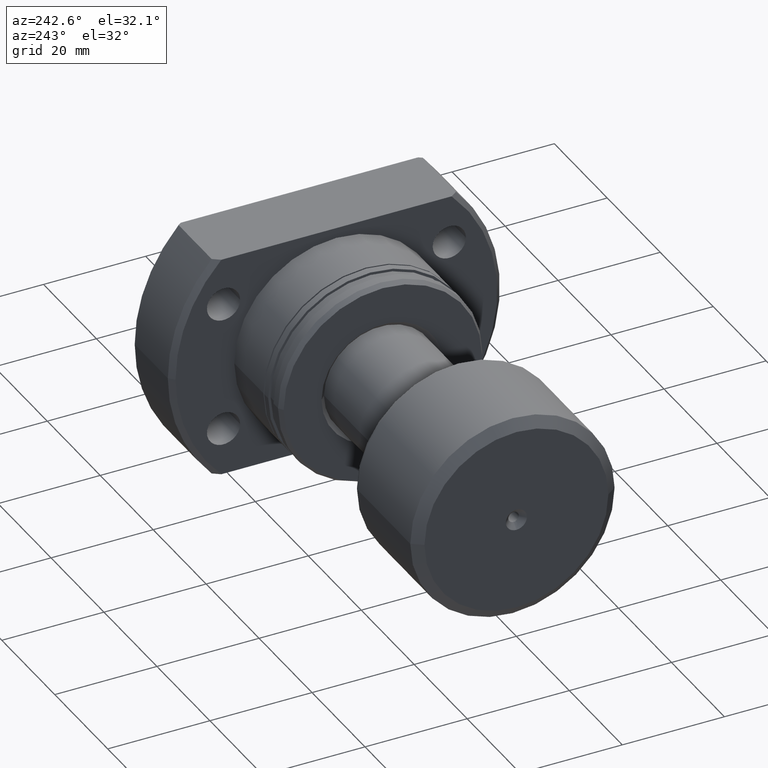
[diagram: clean part render]
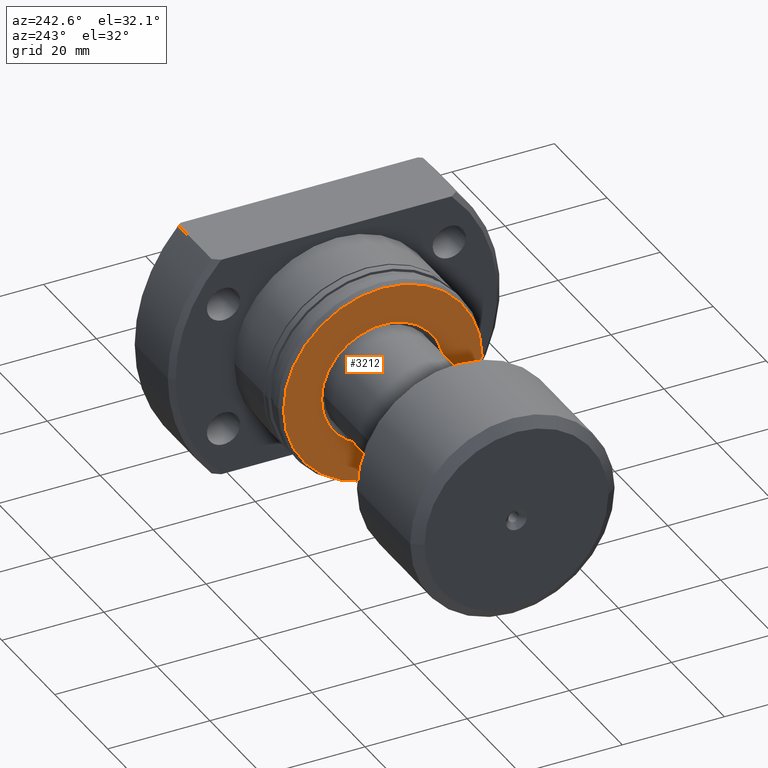
[diagram: same view with one face highlighted and labeled with its STEP entity id]
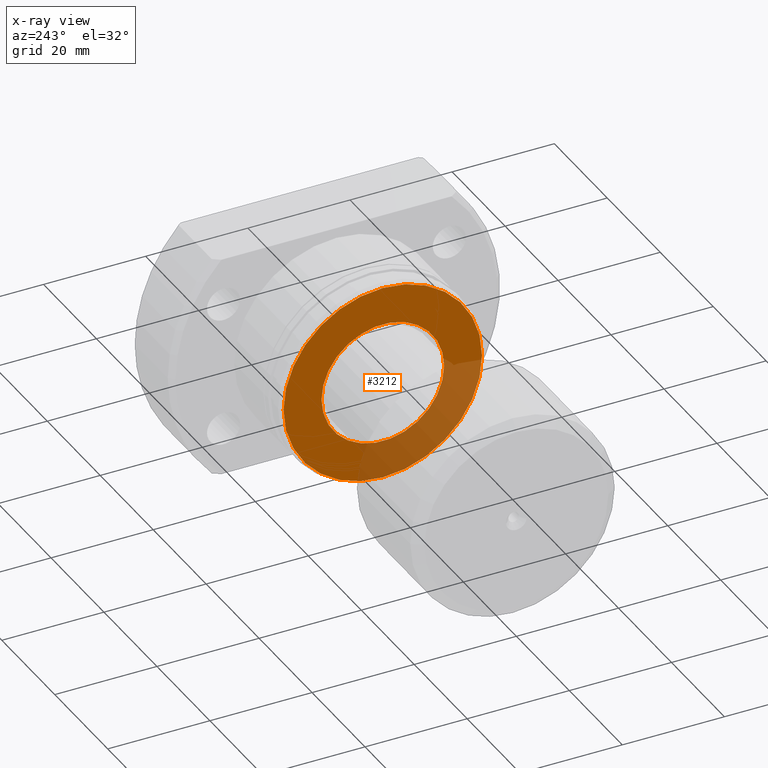
[diagram: x-ray of the same camera — body ghosted, the highlighted face saturated]
A machine part, auxiliary view. The second image highlights one B-rep face of the part: STEP entity #3212.
The next image is the same camera in x-ray: the body ghosted, the highlighted face saturated — about 29% of this face is hidden behind the body in this view.
In plain terms, the highlighted planar face has unit normal (1, 0, 0).
Its self-contained STEP definition (entity closure, byte-faithful):
#4 = DIRECTION ( 'NONE',  ( -2.721437331438560697E-17, 1.000000000000000000, 0.000000000000000000 ) ) ;
#76 = AXIS2_PLACEMENT_3D ( 'NONE', #1620, #3038, #1033 ) ;
#204 = CIRCLE ( 'NONE', #76, 19.42264973081037027 ) ;
#443 = CIRCLE ( 'NONE', #911, 12.00000000000037481 ) ;
#448 = AXIS2_PLACEMENT_3D ( 'NONE', #1320, #1280, #1907 ) ;
#522 = VERTEX_POINT ( 'NONE', #2253 ) ;
#537 = VERTEX_POINT ( 'NONE', #834 ) ;
#568 = CIRCLE ( 'NONE', #2233, 19.42264973081037027 ) ;
#577 = DIRECTION ( 'NONE',  ( 1.000000000000000000, 2.721437331438560389E-17, -0.000000000000000000 ) ) ;
#623 = AXIS2_PLACEMENT_3D ( 'NONE', #2419, #1309, #1602 ) ;
#661 = ORIENTED_EDGE ( 'NONE', *, *, #1599, .F. ) ;
#782 = PLANE ( 'NONE',  #623 ) ;
#834 = CARTESIAN_POINT ( 'NONE',  ( -5.285752405288245154E-16, 19.42264973081037027, 0.000000000000000000 ) ) ;
#872 = ORIENTED_EDGE ( 'NONE', *, *, #2542, .T. ) ;
#901 = VERTEX_POINT ( 'NONE', #3258 ) ;
#911 = AXIS2_PLACEMENT_3D ( 'NONE', #1552, #2111, #2747 ) ;
#964 = VERTEX_POINT ( 'NONE', #3024 ) ;
#1028 = FACE_OUTER_BOUND ( 'NONE', #2617, .T. ) ;
#1033 = DIRECTION ( 'NONE',  ( -2.721437331438560697E-17, 1.000000000000000000, 0.000000000000000000 ) ) ;
#1280 = DIRECTION ( 'NONE',  ( 1.000000000000000000, 2.721437331438560389E-17, -0.000000000000000000 ) ) ;
#1309 = DIRECTION ( 'NONE',  ( 1.000000000000000000, 2.721437331438560389E-17, -0.000000000000000000 ) ) ;
#1320 = CARTESIAN_POINT ( 'NONE',  ( 9.250066709254890749E-16, -2.566457008072278120E-29, 0.000000000000000000 ) ) ;
#1552 = CARTESIAN_POINT ( 'NONE',  ( 9.250066709254890749E-16, -2.566457008072278120E-29, 0.000000000000000000 ) ) ;
#1573 = EDGE_LOOP ( 'NONE', ( #2930, #872 ) ) ;
#1599 = EDGE_CURVE ( 'NONE', #522, #537, #204, .T. ) ;
#1602 = DIRECTION ( 'NONE',  ( -2.721437331438560389E-17, 1.000000000000000000, 0.000000000000000000 ) ) ;
#1620 = CARTESIAN_POINT ( 'NONE',  ( 0.000000000000000000, 0.000000000000000000, 0.000000000000000000 ) ) ;
#1907 = DIRECTION ( 'NONE',  ( -2.721437331438560389E-17, 1.000000000000000000, 0.000000000000000000 ) ) ;
#2111 = DIRECTION ( 'NONE',  ( 1.000000000000000000, 2.721437331438560389E-17, -0.000000000000000000 ) ) ;
#2233 = AXIS2_PLACEMENT_3D ( 'NONE', #2279, #577, #4 ) ;
#2253 = CARTESIAN_POINT ( 'NONE',  ( 5.285752405288245154E-16, -19.42264973081037027, 2.413941090337209377E-15 ) ) ;
#2279 = CARTESIAN_POINT ( 'NONE',  ( 0.000000000000000000, 0.000000000000000000, 0.000000000000000000 ) ) ;
#2401 = CIRCLE ( 'NONE', #448, 12.00000000000037481 ) ;
#2419 = CARTESIAN_POINT ( 'NONE',  ( 9.250066709254811863E-16, 2.517347686086308164E-32, 0.000000000000000000 ) ) ;
#2542 = EDGE_CURVE ( 'NONE', #901, #964, #443, .T. ) ;
#2617 = EDGE_LOOP ( 'NONE', ( #2630, #661 ) ) ;
#2623 = EDGE_CURVE ( 'NONE', #964, #901, #2401, .T. ) ;
#2630 = ORIENTED_EDGE ( 'NONE', *, *, #3679, .F. ) ;
#2747 = DIRECTION ( 'NONE',  ( -2.721437331438560389E-17, 1.000000000000000000, 0.000000000000000000 ) ) ;
#2930 = ORIENTED_EDGE ( 'NONE', *, *, #2623, .T. ) ;
#3024 = CARTESIAN_POINT ( 'NONE',  ( 1.141847105422589962E-15, -11.99999999999968203, 0.000000000000000000 ) ) ;
#3038 = DIRECTION ( 'NONE',  ( 1.000000000000000000, 2.721437331438560389E-17, -0.000000000000000000 ) ) ;
#3212 = ADVANCED_FACE ( 'NONE', ( #3550, #1028 ), #782, .F. ) ;
#3258 = CARTESIAN_POINT ( 'NONE',  ( 7.081662364283881881E-16, 12.00000000000037481, 1.469576158976869898E-15 ) ) ;
#3550 = FACE_BOUND ( 'NONE', #1573, .T. ) ;
#3679 = EDGE_CURVE ( 'NONE', #537, #522, #568, .T. ) ;